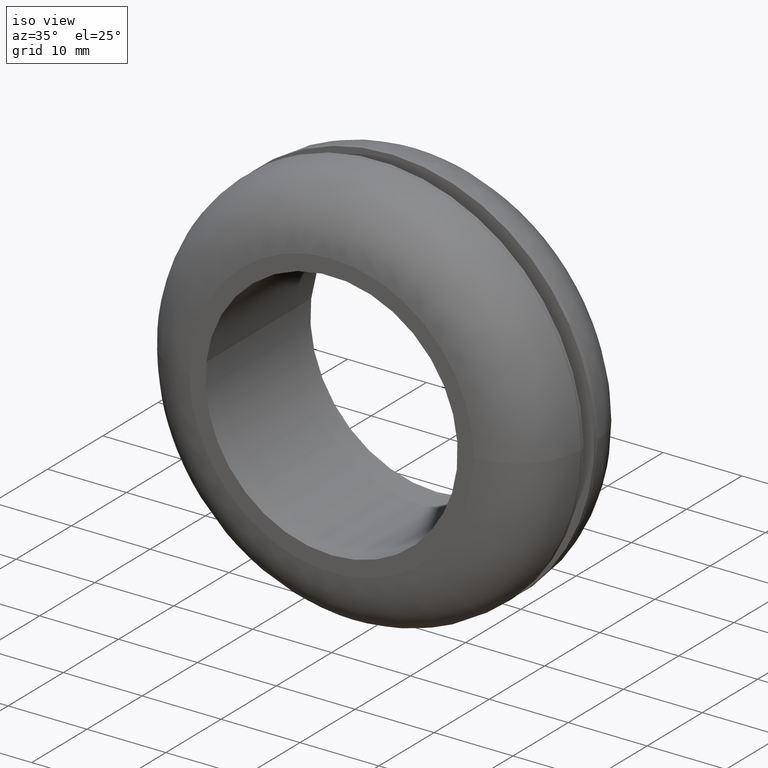
[diagram: clean part render]
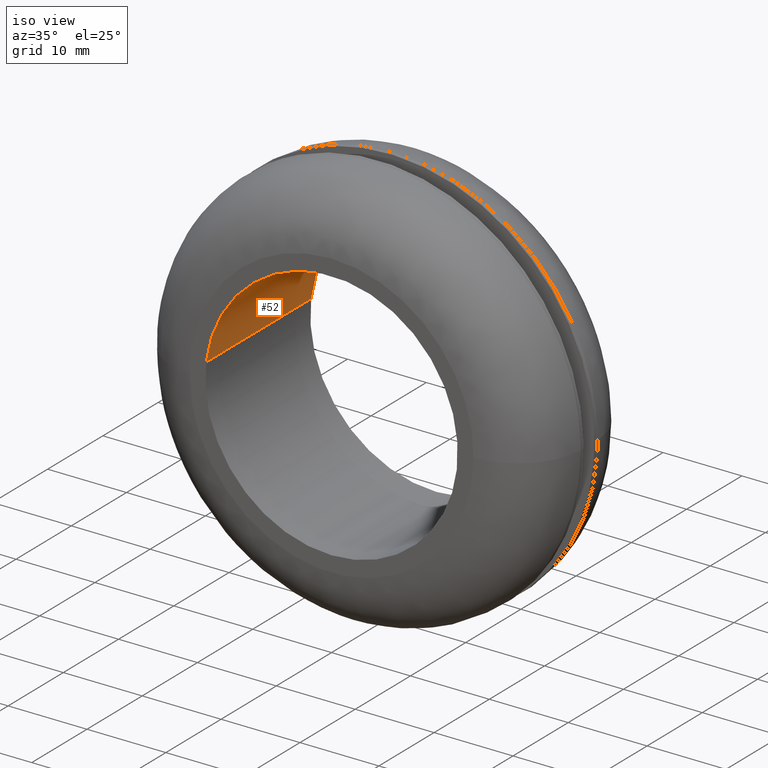
[diagram: same view with one face highlighted and labeled with its STEP entity id]
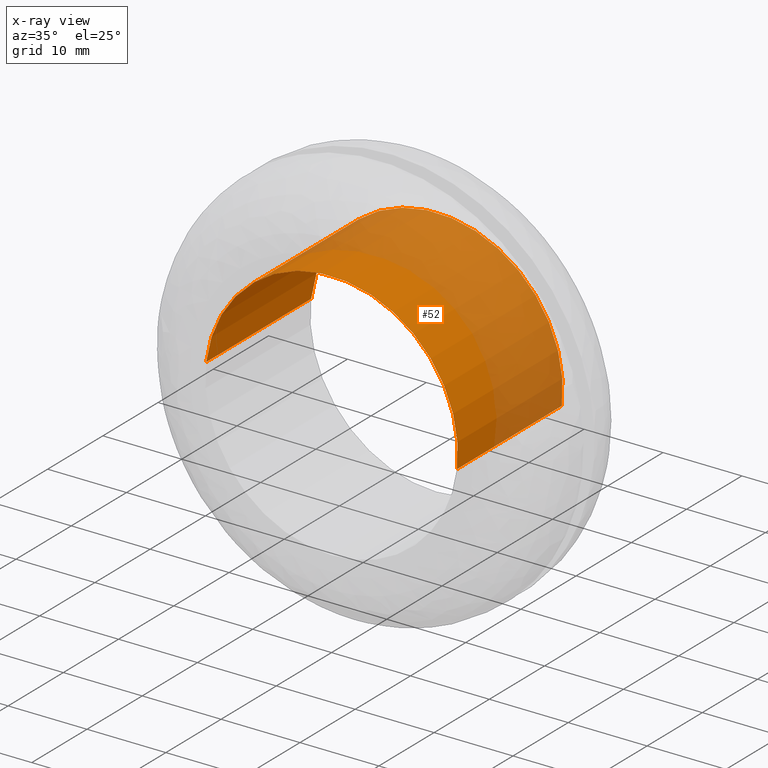
[diagram: x-ray of the same camera — body ghosted, the highlighted face saturated]
A machine part, iso view. The second image highlights one B-rep face of the part: STEP entity #52.
The next image is the same camera in x-ray: the body ghosted, the highlighted face saturated — about 55% of this face is hidden behind the body in this view.
In plain terms, the highlighted cylindrical surface (partial cylindrical patch) has radius 16 mm, axis along (-0, 1, -0).
Its self-contained STEP definition (entity closure, byte-faithful):
#52=ADVANCED_FACE('',(#181),#180,.F.);
#180=CYLINDRICAL_SURFACE('',#371,1.60000000000E+001);
#181=FACE_OUTER_BOUND('',#372,.T.);
#368=CARTESIAN_POINT('',(-7.44403468673E-015,1.94750000000E+001,-4.04665617200E-014));
#369=DIRECTION('',(-5.14318721736E-016,1.00000000000E+000,-4.32690898328E-015));
#370=DIRECTION('',(-9.93009526364E-001,-1.18329135783E-029,1.18034234657E-001));
#371=AXIS2_PLACEMENT_3D('',#368,#369,#370);
#372=EDGE_LOOP('',(#467,#468,#469,#470));
#467=ORIENTED_EDGE('',*,*,#514,.T.);
#468=ORIENTED_EDGE('',*,*,#540,.T.);
#469=ORIENTED_EDGE('',*,*,#508,.F.);
#470=ORIENTED_EDGE('',*,*,#541,.F.);
#508=EDGE_CURVE('',#650,#657,#658,.T.);
#514=EDGE_CURVE('',#699,#691,#700,.T.);
#540=EDGE_CURVE('',#691,#657,#872,.T.);
#541=EDGE_CURVE('',#699,#650,#878,.T.);
#650=VERTEX_POINT('',#972);
#657=VERTEX_POINT('',#977);
#658=CIRCLE('',#981,1.60000000000E+001);
#691=VERTEX_POINT('',#1001);
#699=VERTEX_POINT('',#1007);
#700=CIRCLE('',#1011,1.60000000000E+001);
#872=(BOUNDED_CURVE() B_SPLINE_CURVE(1,(#1124,#1125),.UNSPECIFIED.,.F.,.F.) B_SPLINE_CURVE_WITH_KNOTS((2,2),(8.33333328360E-002,9.16666665505E-001),.UNSPECIFIED.) CURVE() GEOMETRIC_REPRESENTATION_ITEM() RATIONAL_B_SPLINE_CURVE((1.00000000000E+000,1.00000000000E+000)) REPRESENTATION_ITEM('') );
#878=(BOUNDED_CURVE() B_SPLINE_CURVE(1,(#1126,#1127),.UNSPECIFIED.,.F.,.F.) B_SPLINE_CURVE_WITH_KNOTS((2,2),(8.33333333333E-002,9.16666666667E-001),.UNSPECIFIED.) CURVE() GEOMETRIC_REPRESENTATION_ITEM() RATIONAL_B_SPLINE_CURVE((7.50000000000E-001,7.50000000000E-001)) REPRESENTATION_ITEM('') );
#972=CARTESIAN_POINT('',(1.58878257745E+001,1.90000000000E+001,-1.89129377923E+000));
#977=CARTESIAN_POINT('',(-1.58881531124E+001,1.90000000000E+001,1.88854194430E+000));
#978=CARTESIAN_POINT('',(9.32587340685E-012,1.90000000000E+001,2.05124806030E-011));
#979=DIRECTION('',(5.96907578988E-015,-1.00000000000E+000,4.26929276445E-014));
#980=DIRECTION('',(-5.82284220840E-013,-4.26929276445E-014,-1.00000000000E+000));
#981=AXIS2_PLACEMENT_3D('',#978,#979,#980);
#1001=CARTESIAN_POINT('',(-1.58881531124E+001,-5.05372039470E-015,1.88854194430E+000));
#1007=CARTESIAN_POINT('',(1.58878257745E+001,-3.99972844097E-015,-1.89129377923E+000));
#1008=CARTESIAN_POINT('',(9.09672337457E-012,-4.52517796255E-015,2.00177652232E-011));
#1009=DIRECTION('',(1.64537465850E-016,-1.00000000000E+000,1.10437262160E-015));
#1010=DIRECTION('',(-5.68683988789E-013,-1.10437262160E-015,-1.00000000000E+000));
#1011=AXIS2_PLACEMENT_3D('',#1008,#1009,#1010);
#1124=CARTESIAN_POINT('',(-1.58881524218E+001,-1.13401874557E-008,1.88854775451E+000));
#1125=CARTESIAN_POINT('',(-1.58881524218E+001,1.89999999735E+001,1.88854775451E+000));
#1126=CARTESIAN_POINT('',(1.58881524218E+001,1.15463194561E-014,-1.88854775451E+000));
#1127=CARTESIAN_POINT('',(1.58881524218E+001,1.90000000000E+001,-1.88854775451E+000));